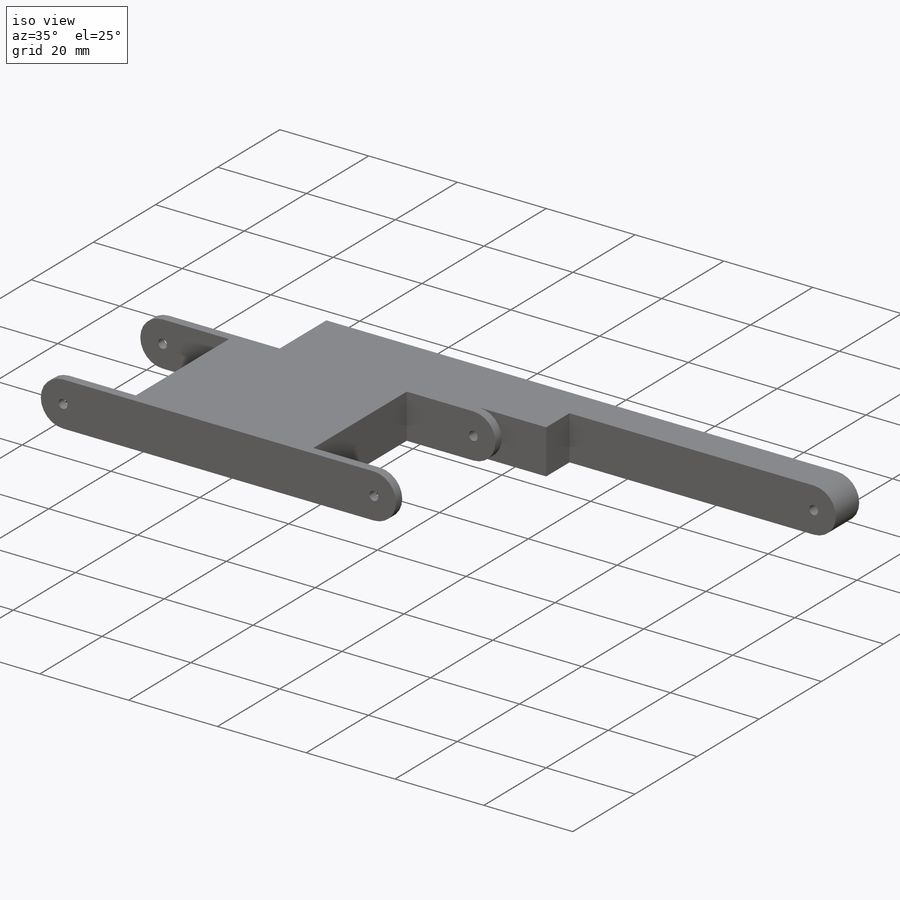
[diagram: iso view]
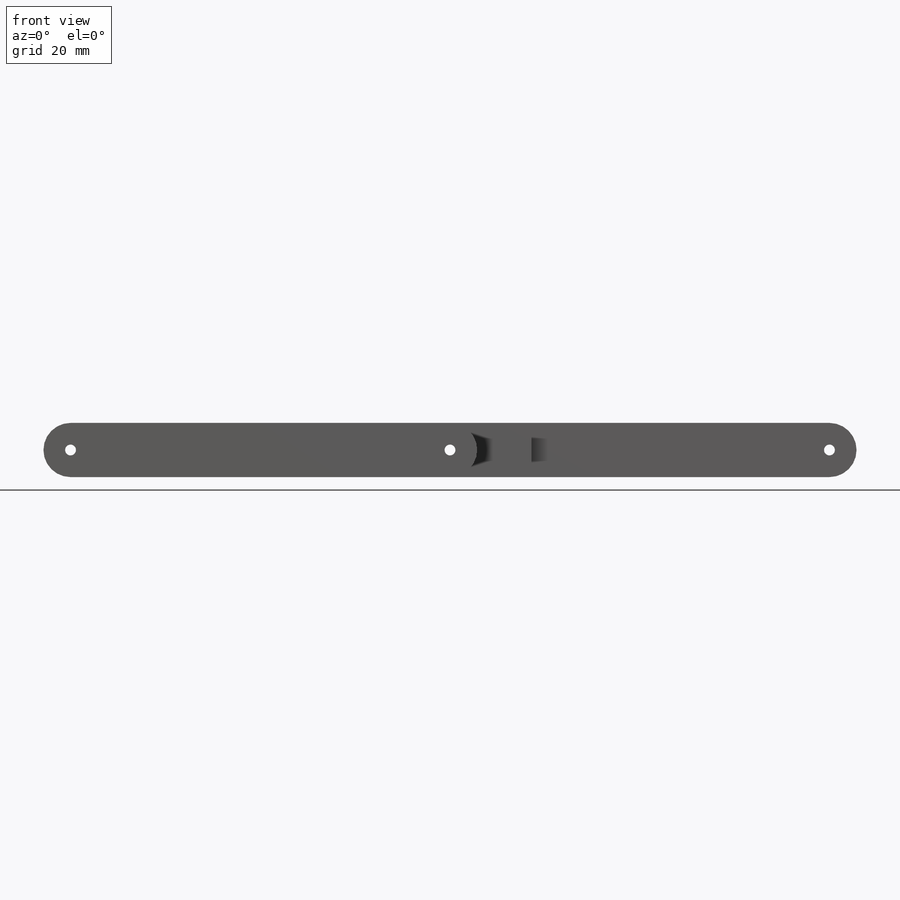
[diagram: front view]
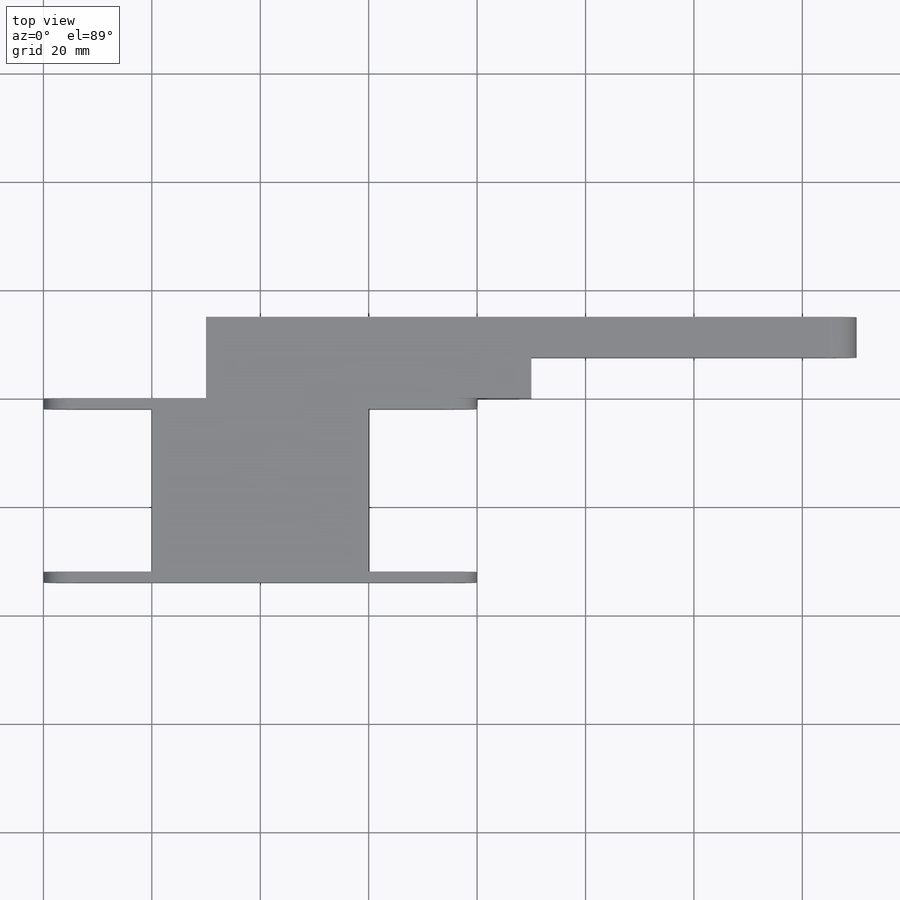
[diagram: top view]
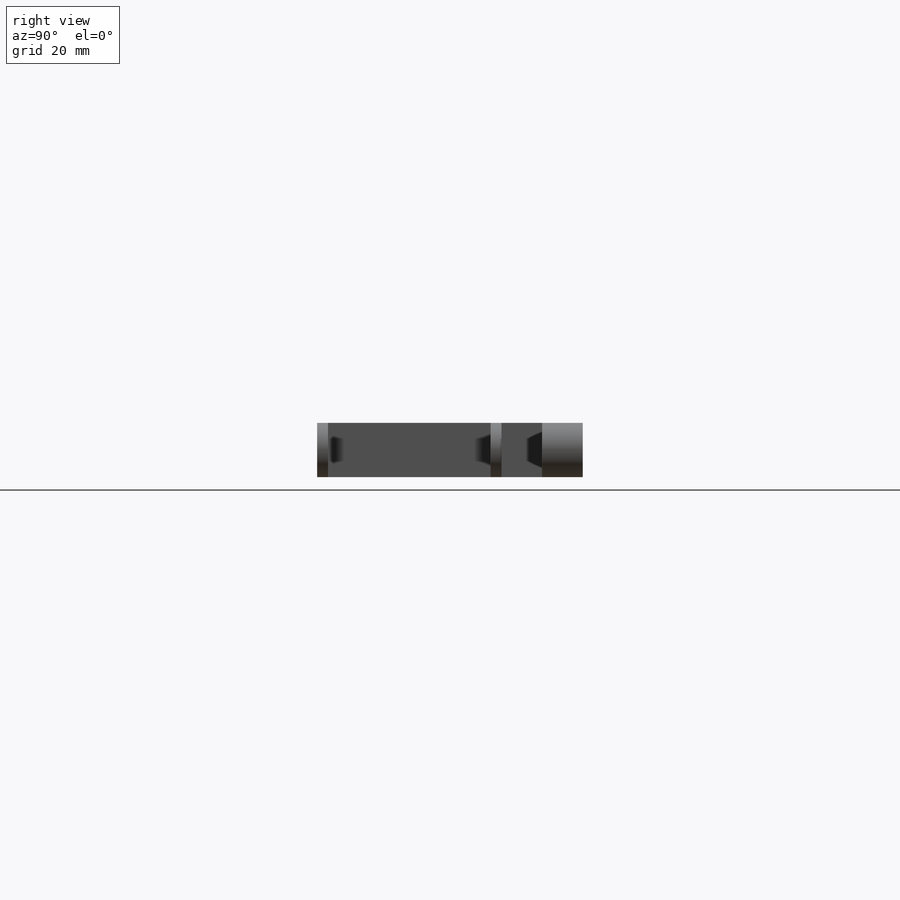
[diagram: right view]
SOLIDWORKS PART (.sldprt)
format: sldprt  version: not decoded by parser v0  size: 224,768 bytes
history: native  units: mm
features: sketch x7, cut_extrude x4, plane x3, extrude x3, material x1 (+10 scaffold rows collapsed)
feature tree (28):
  scaffold x10  (default folders/planes/origin — collapsed)
  material  "材質 <未指定>"
  plane  "前基準面"
  plane  "上基準面"
  plane  "右基準面"
  sketch  "草圖1"  dims[D2=5.0mm D1=70.0mm]
  extrude  "填料-伸長1"  Depth=34mm
  sketch  "草圖2"  dims[D1=2.0mm]
  cut_extrude  "除料-伸長4"  Depth=30mm
  sketch  "草圖3"  dims[D1=20.0mm D2=30.0mm D3=2.0mm D4=15.0mm]
  cut_extrude  "除料-伸長5"  Depth=30mm
  sketch  "草圖4"  dims[c1.D2=10.0mm c1.D5=10.0mm c1.D3=5.0mm c1.D1=10.0mm c2.D2=10.0mm c2.D3=70.0mm c2.D4=20.0mm c3.D2=0.0mm]
  extrude  "填料-伸長4"  Depth=15mm
  sketch  "草圖5"  dims[D2=2.0mm D1=35.0mm]
  cut_extrude  "除料-伸長7"  [1 undecoded]
  sketch  "草圖6"
  extrude  "填料-伸長5"  Depth=10mm
  sketch  "草圖7"  dims[D1=70.0mm D2=10.0mm D3=7.5mm D4=60.0mm]
  cut_extrude  "除料-伸長8"  Depth=10mm
decode coverage: 12 of 14 modeling features carry decoded parameters
note: 1 parameter value undecoded
note: suppression state not decoded; provenance and decode notes live in map.json
